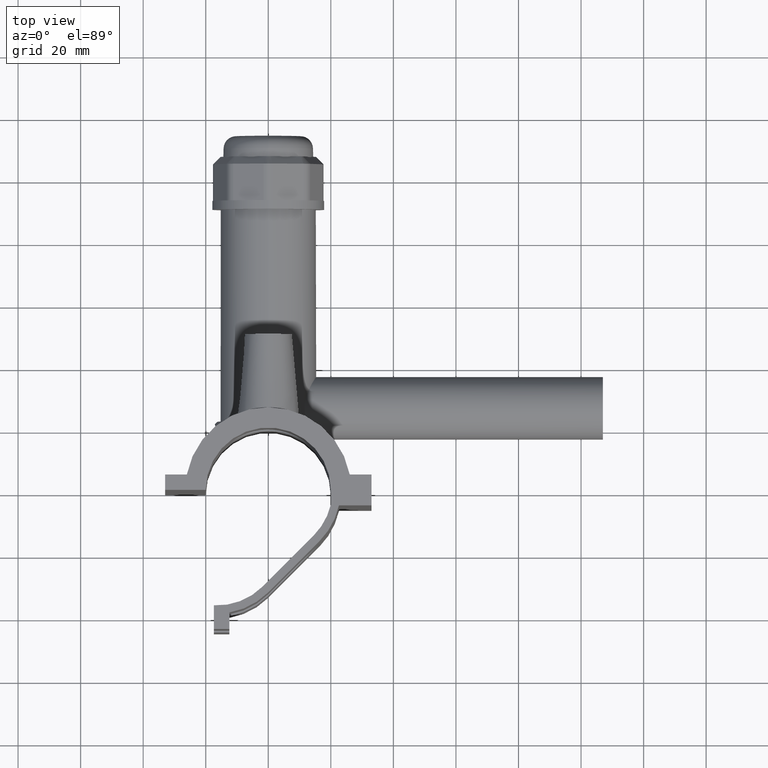
[diagram: clean part render]
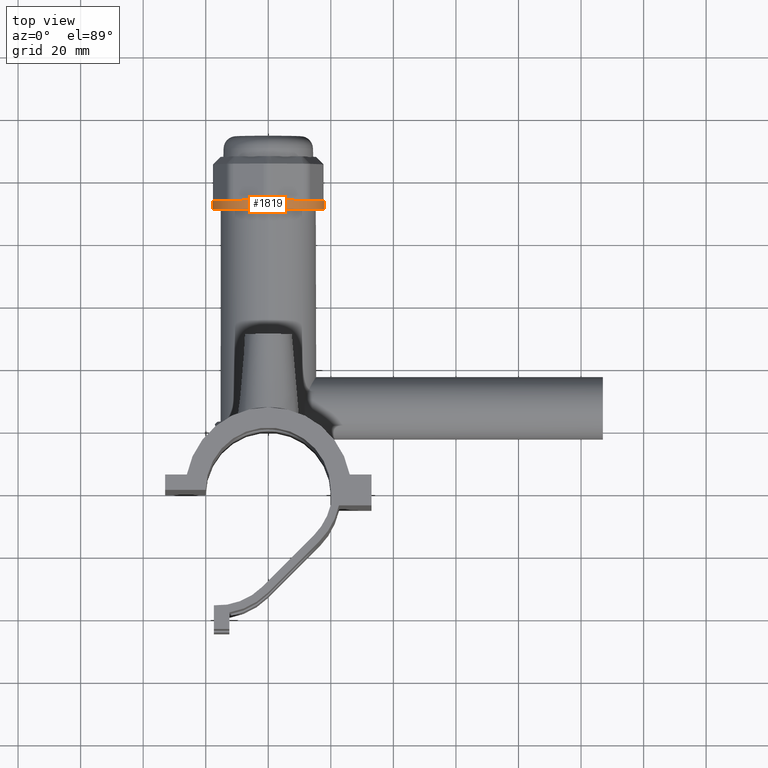
[diagram: same view with one face highlighted and labeled with its STEP entity id]
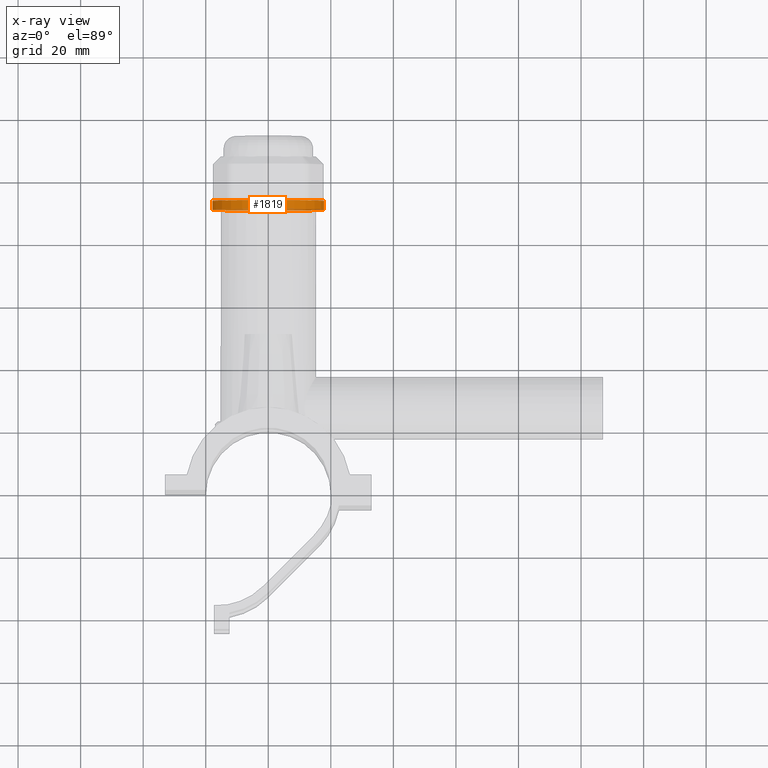
[diagram: x-ray of the same camera — body ghosted, the highlighted face saturated]
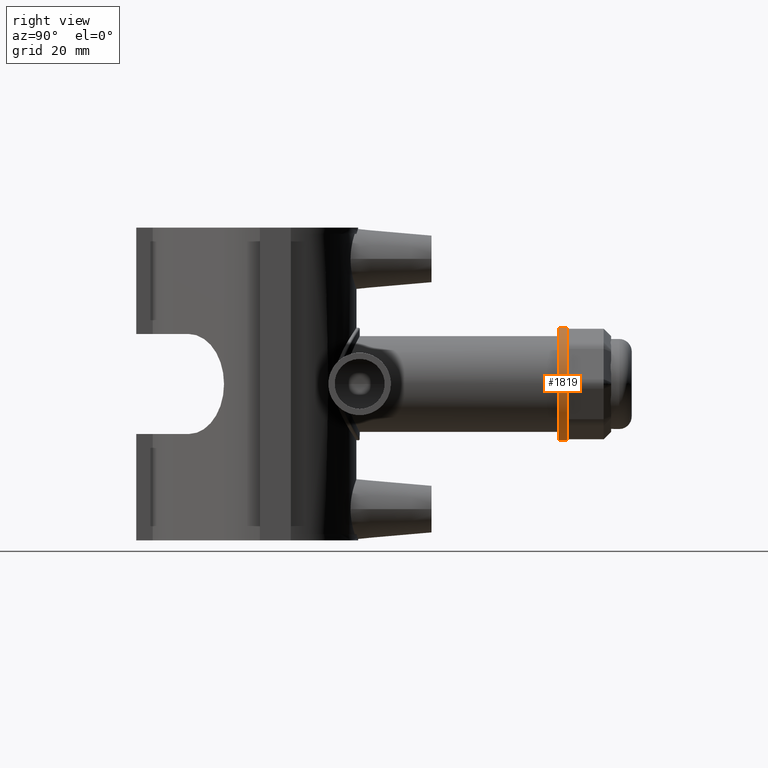
[diagram: same view with one face highlighted and labeled with its STEP entity id]
A machine part, top view. The second image highlights one B-rep face of the part: STEP entity #1819.
The next image is the same camera in x-ray: the body ghosted, the highlighted face saturated — about 11% of this face is hidden behind the body in this view.
A second angle (right view) of the same face is appended — the face is thin or edge-on in the first view.
In plain terms, the highlighted cylindrical surface (bore or boss wall) has radius 18 mm, axis along (0, 1, 0).
Its self-contained STEP definition (entity closure, byte-faithful):
#342=FACE_BOUND('',#587,.T.);
#393=CYLINDRICAL_SURFACE('',#1984,18.);
#465=FACE_OUTER_BOUND('',#586,.T.);
#586=EDGE_LOOP('',(#1422));
#587=EDGE_LOOP('',(#1423));
#697=CIRCLE('',#1981,18.);
#698=CIRCLE('',#1983,18.);
#823=VERTEX_POINT('',#3101);
#824=VERTEX_POINT('',#3104);
#1043=EDGE_CURVE('',#823,#823,#697,.T.);
#1044=EDGE_CURVE('',#824,#824,#698,.T.);
#1422=ORIENTED_EDGE('',*,*,#1044,.T.);
#1423=ORIENTED_EDGE('',*,*,#1043,.F.);
#1819=ADVANCED_FACE('',(#465,#342),#393,.T.);
#1981=AXIS2_PLACEMENT_3D('',#3102,#2350,#2351);
#1983=AXIS2_PLACEMENT_3D('',#3105,#2354,#2355);
#1984=AXIS2_PLACEMENT_3D('',#3106,#2356,#2357);
#2350=DIRECTION('center_axis',(0.,1.,3.06161699786838E-16));
#2351=DIRECTION('ref_axis',(1.,0.,0.));
#2354=DIRECTION('center_axis',(0.,1.,3.06161699786838E-16));
#2355=DIRECTION('ref_axis',(1.,0.,0.));
#2356=DIRECTION('center_axis',(0.,1.,3.06161699786838E-16));
#2357=DIRECTION('ref_axis',(0.,0.,1.));
#3101=CARTESIAN_POINT('',(0.,93.32,18.));
#3102=CARTESIAN_POINT('Origin',(0.,93.32,2.2447775828371E-14));
#3104=CARTESIAN_POINT('',(0.,90.5,18.));
#3105=CARTESIAN_POINT('Origin',(0.,90.5,2.15843998349721E-14));
#3106=CARTESIAN_POINT('Origin',(0.,91.91,2.20160878316715E-14));